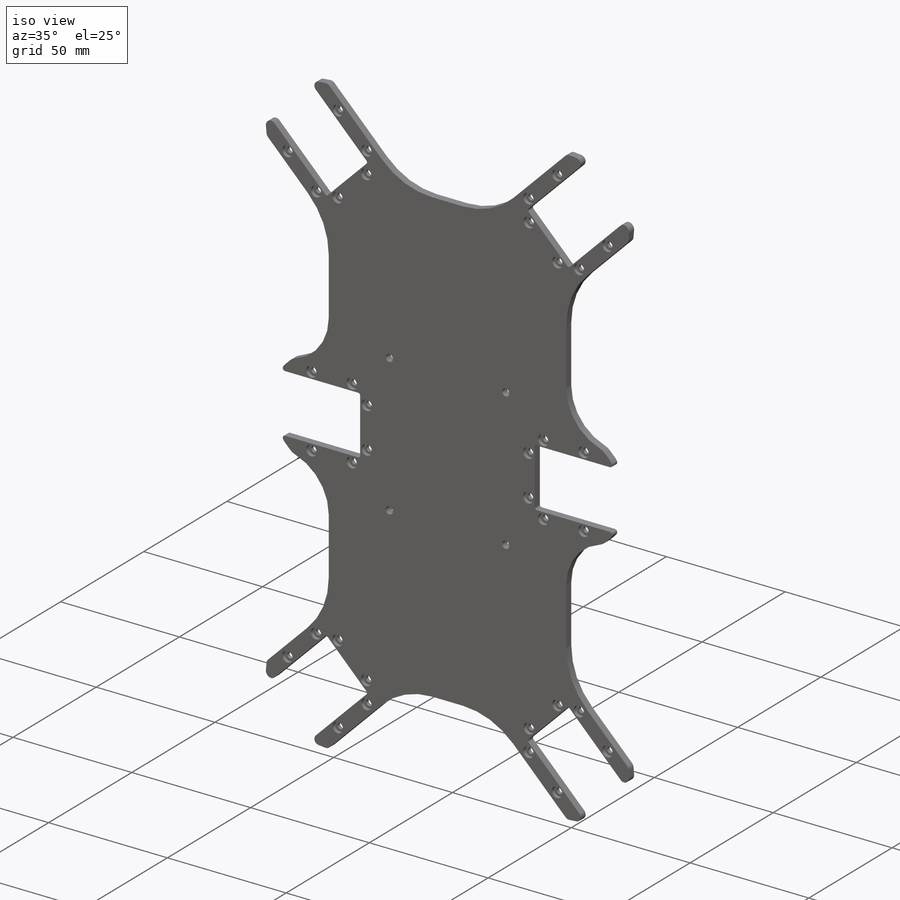
[diagram: iso view]
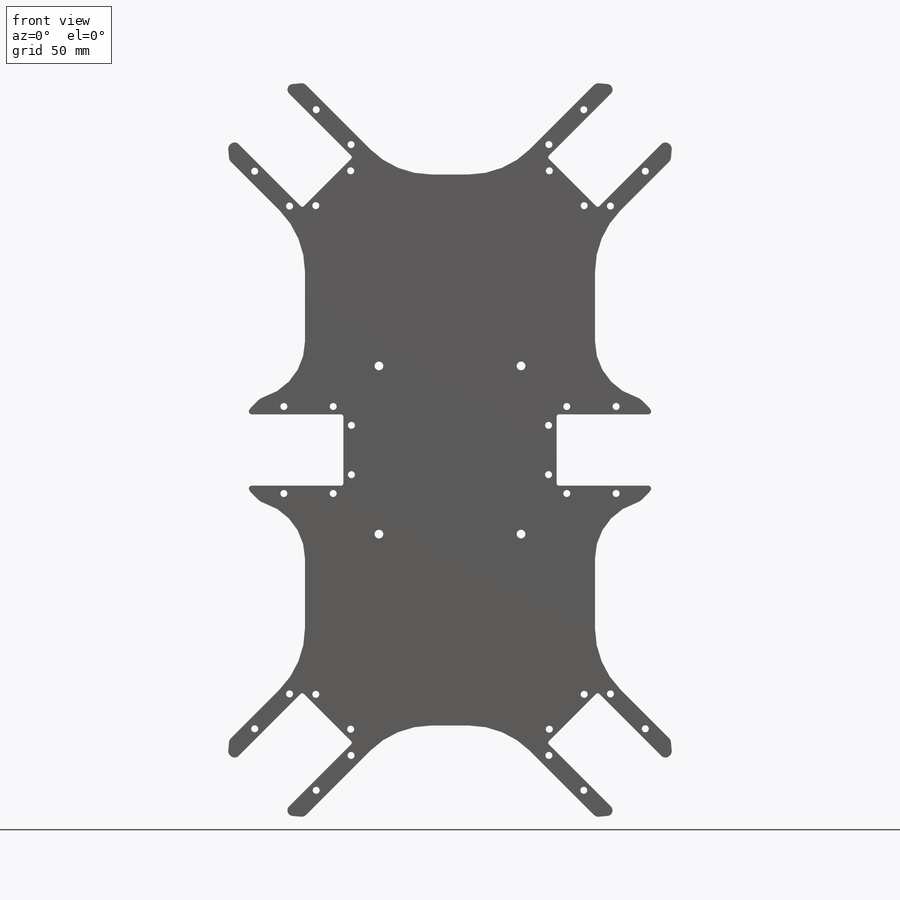
[diagram: front view]
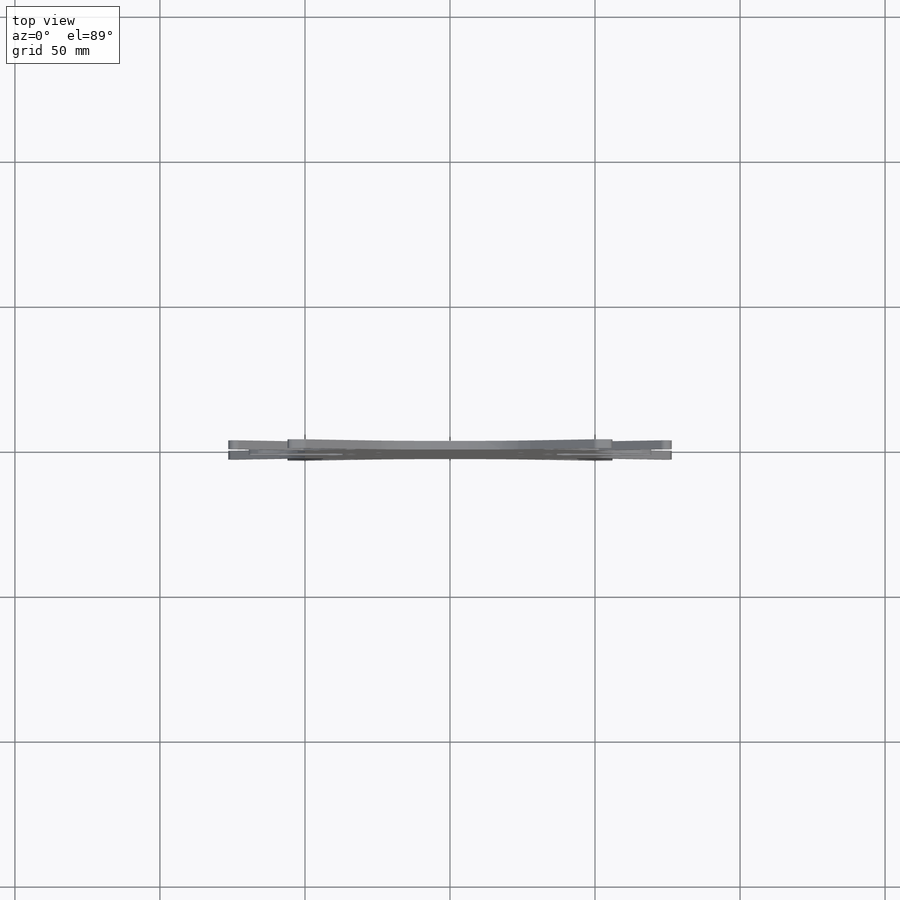
[diagram: top view]
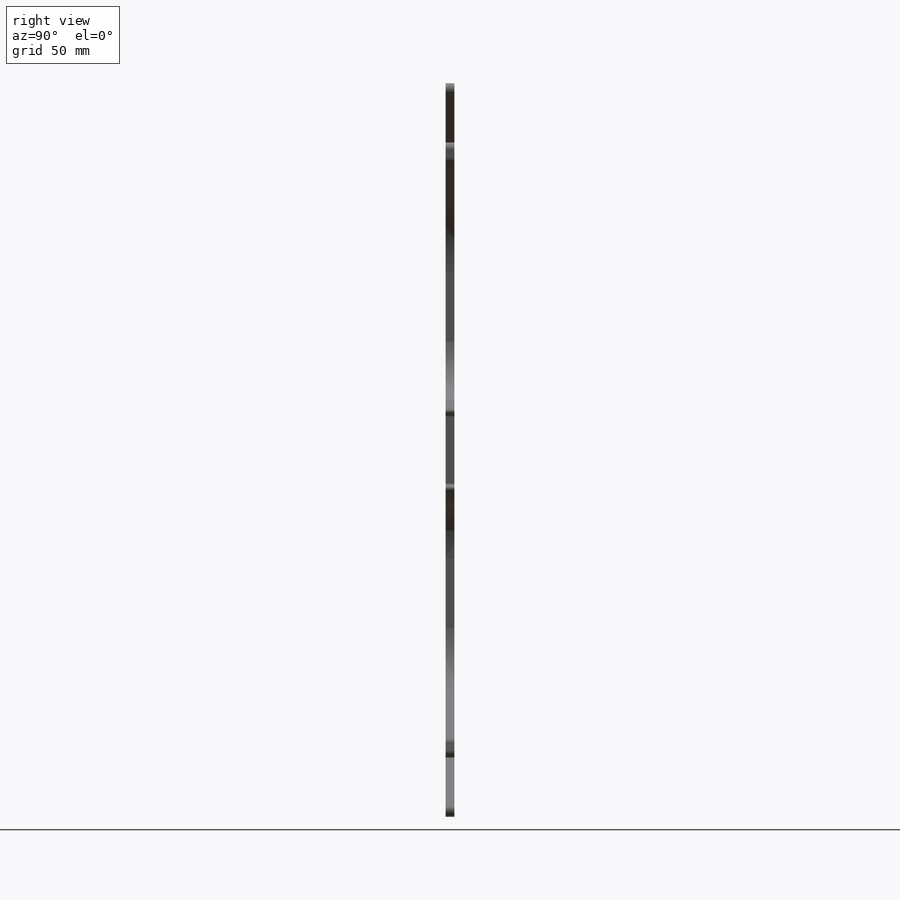
[diagram: right view]
SOLIDWORKS PART (.sldprt)
format: sldprt  version: not decoded by parser v0  size: 3,061,248 bytes
history: native  units: mm
features: sketch x21, fillet x8, hole x4, cut_extrude x3, extrude x2, chamfer x2, mirror x2, material x1 (+12 scaffold rows collapsed)
feature tree (55):
  scaffold x12  (default folders/planes/origin — collapsed)
  material  "ABS"
  sketch  "Sketch1"  dims[D1=75.0mm D2=50.0mm]
  sketch  "Sketch2"  dims[c1.D1=~18.210632mm c2.D1=135.0deg c2.D2=37.0mm c2.D3=48.5mm c2.D4=55.43mm c2.D5=10.43mm c2.D6=38.5mm]
  sketch  "Sketch4"  dims[D1=20.0mm D2=6.0mm]
  sketch  "Sketch6"  dims[D1=6.5mm D2=8.0mm D3=8.0mm D4=8.0mm D5=13.5mm D6=8.0mm D7=36.0mm]
  sketch  "Sketch9"  dims[D1=15.0mm D2=12.5mm D3=17.0mm D4=8.5mm D5=35.8mm]
  sketch  "Sketch15"  dims[D1=38.6mm]
  sketch  "Sketch18"  dims[D1=12.5mm D2=17.0mm D3=15.0mm D4=8.5mm D5=35.8mm]
  sketch  "Sketch22"  dims[D1=6.5mm D2=8.0mm D3=8.0mm D4=8.0mm D5=8.0mm D6=36.0mm D7=13.5mm]
  sketch  "Sketch3"
  extrude  "Boss-Extrude1"  Depth=3mm
  sketch  "Sketch5"
  cut_extrude  "Cut-Extrude1"  [1 undecoded]
  hole  "CBORE for M2 Hex Socket Head Cap Screw2"  Diameter=2.4mm Depth=3mm
  sketch  "Sketch11"
  sketch  "Sketch10"  dims[hole-wizard template sketch: 42 standard entries collapsed; hole parameters kept: c12.Thru Hole Depth=3.0mm c12.C'Bore Dia.=4.4mm c12.C'Bore Depth=1.5mm]
  hole  "CBORE for M2 Hex Socket Head Cap Screw3"  Diameter=2.4mm Depth=3mm
  sketch  "Sketch13"
  sketch  "Sketch12"  dims[hole-wizard template sketch: 42 standard entries collapsed; hole parameters kept: c12.Thru Hole Depth=3.0mm c12.C'Bore Dia.=4.4mm c12.C'Bore Depth=1.5mm]
  sketch  "Sketch16"
  extrude  "Boss-Extrude2"  [1 undecoded]
  sketch  "Sketch21"
  cut_extrude  "Cut-Extrude3"  [1 undecoded]
  sketch  "Sketch14"  dims[c1.D1=3.0mm c1.D2=3.0mm c1.D3=3.0mm c2.D2=29.0mm c2.D3=24.5mm]
  cut_extrude  "Cut-Extrude2"  [1 undecoded]
  hole  "CBORE for M2 Hex Socket Head Cap Screw4"  Diameter=2.4mm Depth=3mm
  sketch  "Sketch20"
  sketch  "Sketch19"  dims[hole-wizard template sketch: 42 standard entries collapsed; hole parameters kept: c12.Thru Hole Depth=3.0mm c12.C'Bore Dia.=4.4mm c12.C'Bore Depth=1.5mm]
  hole  "CBORE for M2 Hex Socket Head Cap Screw5"  Diameter=2.4mm Depth=3mm
  sketch  "Sketch24"
  sketch  "Sketch23"  dims[hole-wizard template sketch: 42 standard entries collapsed; hole parameters kept: c12.Thru Hole Depth=3.0mm c12.C'Bore Dia.=4.4mm c12.C'Bore Depth=1.5mm]
  fillet  "Fillet1"  Radius=30mm
  chamfer  "Chamfer1"  Distance=5mm Angle=50deg
  fillet  "Fillet2"  Radius=2mm
  fillet  "Fillet3"  Radius=0.8mm
  chamfer  "Chamfer2"  Distance=5mm Angle=45deg
  fillet  "Fillet5"  Radius=5mm
  fillet  "Fillet6"  Radius=1mm
  fillet  "Fillet7"  Radius=1mm
  fillet  "Fillet8"  Radius=0.8mm
  fillet  "Fillet4"  Radius=20mm
  mirror  "Mirror1"
  mirror  "Mirror2"
decode coverage: 28 of 42 modeling features carry decoded parameters
note: ~ marks probable driven/reference dimensions
note: 4 parameter values undecoded
summary: no parameter record found for 4 features; Diameter pulled from absorbed wizard sketch
note: suppression state not decoded; provenance and decode notes live in map.json
